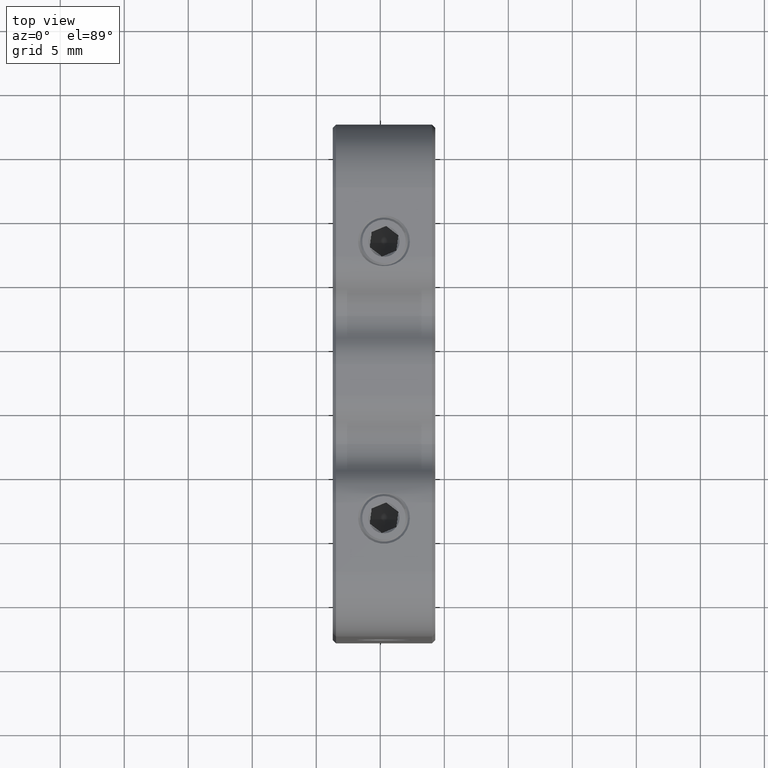
[diagram: clean part render]
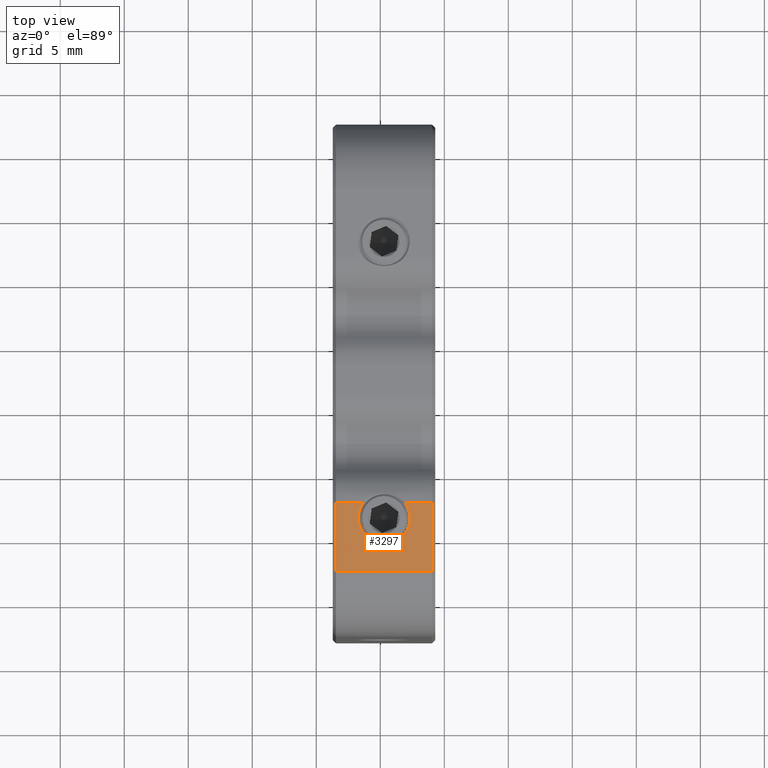
[diagram: same view with one face highlighted and labeled with its STEP entity id]
A machine part, top view. The second image highlights one B-rep face of the part: STEP entity #3297.
In plain terms, the highlighted planar face has unit normal (0, 0, -1).
Its self-contained STEP definition (entity closure, byte-faithful):
#182 = VECTOR ( 'NONE', #6775, 1000.000000000000000 ) ;
#296 = CARTESIAN_POINT ( 'NONE',  ( -14.70960063692994879, -8.690698776590892294, 60.00000000000001421 ) ) ;
#302 = CARTESIAN_POINT ( 'NONE',  ( -10.70960063692994879, -7.500471005237337785, 60.00000000000001421 ) ) ;
#406 = CARTESIAN_POINT ( 'NONE',  ( -10.95960063692994879, -12.89069877659089691, 60.00000000000001421 ) ) ;
#457 = DIRECTION ( 'NONE',  ( 1.000000000000000000, 0.000000000000000000, 0.000000000000000000 ) ) ;
#559 = CARTESIAN_POINT ( 'NONE',  ( -13.07131407704527781, -7.500471005237337785, 60.00000000000001421 ) ) ;
#603 = ORIENTED_EDGE ( 'NONE', *, *, #7858, .T. ) ;
#806 = CARTESIAN_POINT ( 'NONE',  ( -16.73460063692994737, -8.690698776590892294, 60.00000000000001421 ) ) ;
#823 = EDGE_CURVE ( 'NONE', #2432, #1801, #2913, .T. ) ;
#886 = VERTEX_POINT ( 'NONE', #4669 ) ;
#1247 = CIRCLE ( 'NONE', #6085, 2.024999999999999023 ) ;
#1394 = AXIS2_PLACEMENT_3D ( 'NONE', #2299, #3645, #5773 ) ;
#1433 = EDGE_LOOP ( 'NONE', ( #7512, #603, #7398, #1969, #7629, #8563, #2250, #8379 ) ) ;
#1461 = VERTEX_POINT ( 'NONE', #5708 ) ;
#1725 = VECTOR ( 'NONE', #8542, 1000.000000000000000 ) ;
#1801 = VERTEX_POINT ( 'NONE', #559 ) ;
#1969 = ORIENTED_EDGE ( 'NONE', *, *, #3482, .T. ) ;
#2177 = VECTOR ( 'NONE', #4399, 1000.000000000000000 ) ;
#2250 = ORIENTED_EDGE ( 'NONE', *, *, #7506, .F. ) ;
#2299 = CARTESIAN_POINT ( 'NONE',  ( -14.70960063692994879, -8.690698776590892294, 60.00000000000001421 ) ) ;
#2301 = LINE ( 'NONE', #8820, #4738 ) ;
#2432 = VERTEX_POINT ( 'NONE', #8706 ) ;
#2717 = VERTEX_POINT ( 'NONE', #6904 ) ;
#2913 = LINE ( 'NONE', #302, #182 ) ;
#3242 = EDGE_CURVE ( 'NONE', #2717, #1461, #2301, .T. ) ;
#3297 = ADVANCED_FACE ( 'NONE', ( #6314 ), #6187, .F. ) ;
#3376 = DIRECTION ( 'NONE',  ( -0.000000000000000000, -0.000000000000000000, 1.000000000000000000 ) ) ;
#3482 = EDGE_CURVE ( 'NONE', #5663, #2432, #5840, .T. ) ;
#3526 = CARTESIAN_POINT ( 'NONE',  ( -18.45960063692994879, 22.10930122340910842, 60.00000000000001421 ) ) ;
#3588 = VERTEX_POINT ( 'NONE', #6638 ) ;
#3645 = DIRECTION ( 'NONE',  ( -0.000000000000000000, -0.000000000000000000, 1.000000000000000000 ) ) ;
#4082 = LINE ( 'NONE', #8669, #2177 ) ;
#4314 = DIRECTION ( 'NONE',  ( 0.000000000000000000, -1.000000000000000000, -8.673617379884035472E-17 ) ) ;
#4399 = DIRECTION ( 'NONE',  ( 1.000000000000000000, -0.000000000000000000, -0.000000000000000000 ) ) ;
#4669 = CARTESIAN_POINT ( 'NONE',  ( -18.45960063692994879, -12.89069877659089691, 60.00000000000001421 ) ) ;
#4738 = VECTOR ( 'NONE', #6032, 1000.000000000000000 ) ;
#4927 = CARTESIAN_POINT ( 'NONE',  ( -10.95960063692994879, -7.500471005237337785, 60.00000000000001421 ) ) ;
#5348 = VECTOR ( 'NONE', #4314, 1000.000000000000000 ) ;
#5663 = VERTEX_POINT ( 'NONE', #406 ) ;
#5708 = CARTESIAN_POINT ( 'NONE',  ( -18.45960063692994879, -7.500471005237337785, 60.00000000000001421 ) ) ;
#5773 = DIRECTION ( 'NONE',  ( 1.000000000000000000, 0.000000000000000000, 0.000000000000000000 ) ) ;
#5840 = LINE ( 'NONE', #4927, #1725 ) ;
#6032 = DIRECTION ( 'NONE',  ( -1.000000000000000000, 0.000000000000000000, -0.000000000000000000 ) ) ;
#6085 = AXIS2_PLACEMENT_3D ( 'NONE', #9153, #3376, #457 ) ;
#6126 = AXIS2_PLACEMENT_3D ( 'NONE', #7700, #7583, #6921 ) ;
#6187 = PLANE ( 'NONE',  #6126 ) ;
#6314 = FACE_OUTER_BOUND ( 'NONE', #1433, .T. ) ;
#6524 = VERTEX_POINT ( 'NONE', #806 ) ;
#6638 = CARTESIAN_POINT ( 'NONE',  ( -12.68460063692995021, -8.690698776590892294, 60.00000000000001421 ) ) ;
#6748 = AXIS2_PLACEMENT_3D ( 'NONE', #296, #9040, #8945 ) ;
#6775 = DIRECTION ( 'NONE',  ( -1.000000000000000000, 0.000000000000000000, -0.000000000000000000 ) ) ;
#6904 = CARTESIAN_POINT ( 'NONE',  ( -16.34788719681462155, -7.500471005237337785, 60.00000000000001421 ) ) ;
#6921 = DIRECTION ( 'NONE',  ( 0.000000000000000000, 1.000000000000000000, 8.673617379884035472E-17 ) ) ;
#7108 = CIRCLE ( 'NONE', #1394, 2.024999999999999023 ) ;
#7398 = ORIENTED_EDGE ( 'NONE', *, *, #7555, .T. ) ;
#7506 = EDGE_CURVE ( 'NONE', #6524, #3588, #7108, .T. ) ;
#7512 = ORIENTED_EDGE ( 'NONE', *, *, #3242, .T. ) ;
#7555 = EDGE_CURVE ( 'NONE', #886, #5663, #4082, .T. ) ;
#7583 = DIRECTION ( 'NONE',  ( 0.000000000000000000, 8.673617379884035472E-17, -1.000000000000000000 ) ) ;
#7629 = ORIENTED_EDGE ( 'NONE', *, *, #823, .T. ) ;
#7700 = CARTESIAN_POINT ( 'NONE',  ( -10.70960063692994879, 22.10930122340910842, 60.00000000000001421 ) ) ;
#7858 = EDGE_CURVE ( 'NONE', #1461, #886, #8401, .T. ) ;
#8081 = EDGE_CURVE ( 'NONE', #3588, #1801, #8910, .T. ) ;
#8379 = ORIENTED_EDGE ( 'NONE', *, *, #8724, .F. ) ;
#8401 = LINE ( 'NONE', #3526, #5348 ) ;
#8542 = DIRECTION ( 'NONE',  ( 0.000000000000000000, 1.000000000000000000, 8.673617379884035472E-17 ) ) ;
#8563 = ORIENTED_EDGE ( 'NONE', *, *, #8081, .F. ) ;
#8669 = CARTESIAN_POINT ( 'NONE',  ( -10.70960063692994879, -12.89069877659089691, 60.00000000000001421 ) ) ;
#8706 = CARTESIAN_POINT ( 'NONE',  ( -10.95960063692994879, -7.500471005237337785, 60.00000000000001421 ) ) ;
#8724 = EDGE_CURVE ( 'NONE', #2717, #6524, #1247, .T. ) ;
#8820 = CARTESIAN_POINT ( 'NONE',  ( -10.70960063692994879, -7.500471005237337785, 60.00000000000001421 ) ) ;
#8910 = CIRCLE ( 'NONE', #6748, 2.024999999999999023 ) ;
#8945 = DIRECTION ( 'NONE',  ( 1.000000000000000000, 0.000000000000000000, 0.000000000000000000 ) ) ;
#9040 = DIRECTION ( 'NONE',  ( -0.000000000000000000, -0.000000000000000000, 1.000000000000000000 ) ) ;
#9153 = CARTESIAN_POINT ( 'NONE',  ( -14.70960063692994879, -8.690698776590892294, 60.00000000000001421 ) ) ;